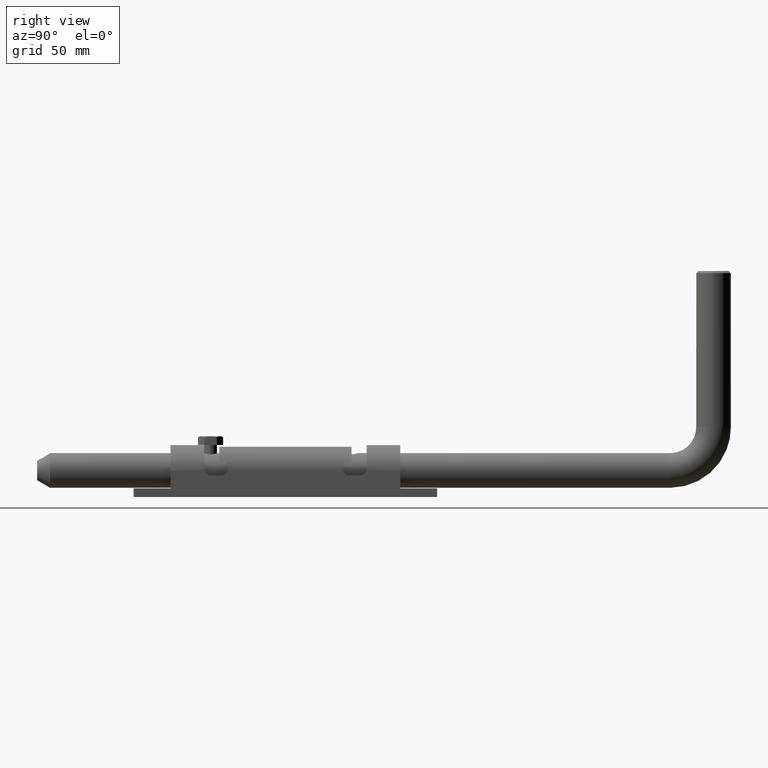
[diagram: clean part render]
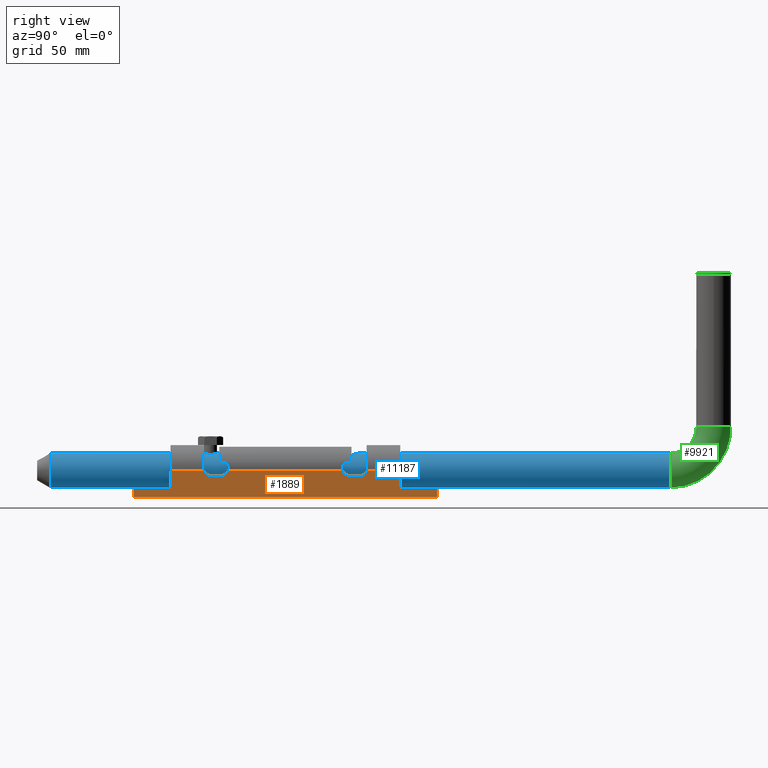
[diagram: same view with three faces highlighted in distinct colors, each labeled with its STEP entity id]
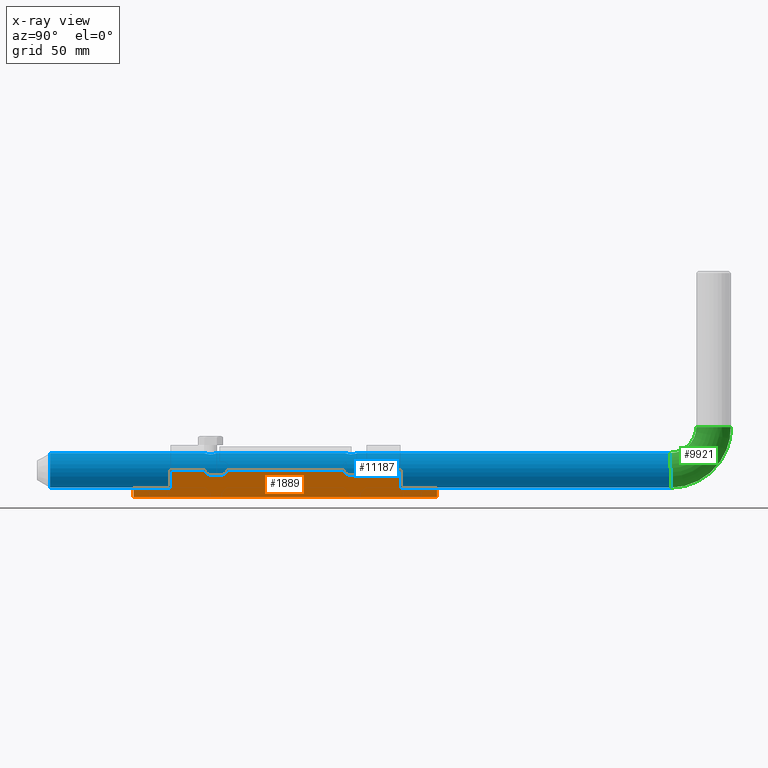
[diagram: x-ray of the same camera — body ghosted, the three highlighted faces saturated]
A machine part, right view with three faces highlighted in distinct colors.
The next image is the same camera in x-ray (body ghosted, the three faces saturated) — at least one of them is partly hidden behind the body in this view.
Their STEP definitions:

[orange] entity #1889 — the highlighted planar face has unit normal (-1, -0, 0).
#284 = VECTOR ( 'NONE', #15888, 1000.000000000000000 ) ;
#290 = EDGE_CURVE ( 'NONE', #322, #16838, #1213, .T. ) ;
#322 = VERTEX_POINT ( 'NONE', #2494 ) ;
#383 = CARTESIAN_POINT ( 'NONE',  ( 11.74999999999998934, -53.00000000000000000, 10.25000000000000888 ) ) ;
#477 = LINE ( 'NONE', #3251, #9412 ) ;
#540 = ORIENTED_EDGE ( 'NONE', *, *, #11032, .F. ) ;
#548 = FACE_OUTER_BOUND ( 'NONE', #8006, .T. ) ;
#795 = CARTESIAN_POINT ( 'NONE',  ( 11.75000000000000888, 37.50000000000000000, 8.000000000000000000 ) ) ;
#858 = ORIENTED_EDGE ( 'NONE', *, *, #13926, .T. ) ;
#983 = VECTOR ( 'NONE', #14760, 1000.000000000000000 ) ;
#990 = CARTESIAN_POINT ( 'NONE',  ( 11.74999999999999112, 70.00000000000000000, 2.000000000000001776 ) ) ;
#1063 = ORIENTED_EDGE ( 'NONE', *, *, #4125, .T. ) ;
#1066 = DIRECTION ( 'NONE',  ( -0.000000000000000000, -0.000000000000000000, -1.000000000000000000 ) ) ;
#1213 = LINE ( 'NONE', #16898, #7965 ) ;
#1458 = CARTESIAN_POINT ( 'NONE',  ( 11.75000000000000888, -37.50000000000000000, 8.000000000000000000 ) ) ;
#1554 = EDGE_CURVE ( 'NONE', #7892, #6774, #9931, .T. ) ;
#1783 = EDGE_CURVE ( 'NONE', #10566, #3492, #10590, .T. ) ;
#1889 = ADVANCED_FACE ( 'NONE', ( #548 ), #15137, .F. ) ;
#1932 = CARTESIAN_POINT ( 'NONE',  ( 11.75000000000000355, -34.49999999999999289, 10.99999999999999645 ) ) ;
#2086 = CARTESIAN_POINT ( 'NONE',  ( 11.74999999999999112, 70.00000000000000000, -2.000000000000001776 ) ) ;
#2197 = CARTESIAN_POINT ( 'NONE',  ( 11.74999999999999112, 70.00000000000000000, 2.000000000000001776 ) ) ;
#2395 = DIRECTION ( 'NONE',  ( -0.000000000000000000, -0.000000000000000000, -1.000000000000000000 ) ) ;
#2444 = CARTESIAN_POINT ( 'NONE',  ( 11.74999999999999112, -53.00000000000000000, 2.000000000000001776 ) ) ;
#2494 = CARTESIAN_POINT ( 'NONE',  ( 11.74999999999998934, 26.59526249034443524, 10.25000000000000888 ) ) ;
#2559 = CARTESIAN_POINT ( 'NONE',  ( 11.74999999999999112, 70.00000000000000000, 2.000000000000001776 ) ) ;
#2614 = DIRECTION ( 'NONE',  ( 0.000000000000000000, -1.000000000000000000, 0.000000000000000000 ) ) ;
#3165 = ORIENTED_EDGE ( 'NONE', *, *, #10746, .T. ) ;
#3248 = VERTEX_POINT ( 'NONE', #2444 ) ;
#3251 = CARTESIAN_POINT ( 'NONE',  ( 11.74999999999998934, 53.00000000000000000, 10.25000000000000888 ) ) ;
#3290 = ORIENTED_EDGE ( 'NONE', *, *, #5492, .T. ) ;
#3291 = EDGE_CURVE ( 'NONE', #5605, #6865, #9895, .T. ) ;
#3305 = VERTEX_POINT ( 'NONE', #9543 ) ;
#3492 = VERTEX_POINT ( 'NONE', #7267 ) ;
#3835 = CARTESIAN_POINT ( 'NONE',  ( 11.74999999999999112, 53.00000000000000000, 2.000000000000001776 ) ) ;
#3844 = DIRECTION ( 'NONE',  ( -1.239088197126290570E-16, 1.000000000000000000, -0.000000000000000000 ) ) ;
#4007 = DIRECTION ( 'NONE',  ( 0.000000000000000000, 1.000000000000000000, 0.000000000000000000 ) ) ;
#4095 = CARTESIAN_POINT ( 'NONE',  ( 11.74999999999998934, 37.40473750965556121, 10.25000000000000888 ) ) ;
#4125 = EDGE_CURVE ( 'NONE', #5605, #7088, #8545, .T. ) ;
#4286 = EDGE_CURVE ( 'NONE', #3492, #15918, #14913, .T. ) ;
#4330 = ORIENTED_EDGE ( 'NONE', *, *, #14730, .T. ) ;
#4450 = DIRECTION ( 'NONE',  ( -0.000000000000000000, -1.000000000000000000, -0.000000000000000000 ) ) ;
#4518 = DIRECTION ( 'NONE',  ( -0.000000000000000000, -1.000000000000000000, -0.000000000000000000 ) ) ;
#4879 = LINE ( 'NONE', #10209, #284 ) ;
#5084 = LINE ( 'NONE', #2559, #5684 ) ;
#5292 = VECTOR ( 'NONE', #4007, 1000.000000000000000 ) ;
#5491 = VECTOR ( 'NONE', #17642, 1000.000000000000000 ) ;
#5492 = EDGE_CURVE ( 'NONE', #12507, #17470, #477, .T. ) ;
#5605 = VERTEX_POINT ( 'NONE', #6599 ) ;
#5655 = CARTESIAN_POINT ( 'NONE',  ( 11.75000000000000888, 29.50000000000000355, 8.000000000000000000 ) ) ;
#5663 = ORIENTED_EDGE ( 'NONE', *, *, #1554, .T. ) ;
#5684 = VECTOR ( 'NONE', #3844, 1000.000000000000000 ) ;
#5691 = AXIS2_PLACEMENT_3D ( 'NONE', #16458, #12320, #2614 ) ;
#5745 = DIRECTION ( 'NONE',  ( -1.000000000000000000, -1.239088197126290817E-16, 0.000000000000000000 ) ) ;
#5999 = CARTESIAN_POINT ( 'NONE',  ( 11.74999999999999289, 29.50000000000000355, 10.99999999999999645 ) ) ;
#6068 = VERTEX_POINT ( 'NONE', #10825 ) ;
#6599 = CARTESIAN_POINT ( 'NONE',  ( 11.75000000000000888, -34.49999999999999289, 8.000000000000000000 ) ) ;
#6774 = VERTEX_POINT ( 'NONE', #5655 ) ;
#6775 = ORIENTED_EDGE ( 'NONE', *, *, #11070, .F. ) ;
#6865 = VERTEX_POINT ( 'NONE', #11788 ) ;
#6978 = DIRECTION ( 'NONE',  ( 0.000000000000000000, -1.000000000000000000, 0.000000000000000000 ) ) ;
#7088 = VERTEX_POINT ( 'NONE', #14358 ) ;
#7257 = CARTESIAN_POINT ( 'NONE',  ( 11.74999999999998934, 53.00000000000000000, 10.25000000000000888 ) ) ;
#7267 = CARTESIAN_POINT ( 'NONE',  ( 11.75000000000000888, -70.00000000000000000, -2.000000000000001776 ) ) ;
#7414 = DIRECTION ( 'NONE',  ( 1.416100796715759877E-16, 0.000000000000000000, -1.000000000000000000 ) ) ;
#7631 = AXIS2_PLACEMENT_3D ( 'NONE', #5999, #8888, #8759 ) ;
#7739 = VERTEX_POINT ( 'NONE', #3835 ) ;
#7892 = VERTEX_POINT ( 'NONE', #15623 ) ;
#7965 = VECTOR ( 'NONE', #4450, 1000.000000000000000 ) ;
#8006 = EDGE_LOOP ( 'NONE', ( #3290, #4330, #5663, #858, #9965, #10235, #14186, #1063, #17849, #3165, #6775, #16463, #15106, #540, #8702, #10273 ) ) ;
#8107 = EDGE_CURVE ( 'NONE', #7739, #6068, #13829, .T. ) ;
#8283 = VECTOR ( 'NONE', #2395, 1000.000000000000000 ) ;
#8545 = CIRCLE ( 'NONE', #17211, 3.000000000000002665 ) ;
#8702 = ORIENTED_EDGE ( 'NONE', *, *, #8107, .F. ) ;
#8759 = DIRECTION ( 'NONE',  ( 0.000000000000000000, -1.000000000000000000, 0.000000000000000000 ) ) ;
#8768 = EDGE_CURVE ( 'NONE', #12507, #7739, #8980, .T. ) ;
#8845 = CIRCLE ( 'NONE', #7631, 2.999999999999999112 ) ;
#8888 = DIRECTION ( 'NONE',  ( -1.000000000000000000, -1.239088197126290817E-16, 0.000000000000000000 ) ) ;
#8980 = LINE ( 'NONE', #14216, #17890 ) ;
#9200 = VECTOR ( 'NONE', #10145, 1000.000000000000000 ) ;
#9336 = CARTESIAN_POINT ( 'NONE',  ( 11.74999999999999112, 70.00000000000000000, -2.000000000000001776 ) ) ;
#9412 = VECTOR ( 'NONE', #4518, 1000.000000000000000 ) ;
#9543 = CARTESIAN_POINT ( 'NONE',  ( 11.74999999999998934, -53.00000000000000000, 10.25000000000000888 ) ) ;
#9835 = DIRECTION ( 'NONE',  ( 1.239088197126290817E-16, -1.000000000000000000, 0.000000000000000000 ) ) ;
#9895 = LINE ( 'NONE', #1458, #5292 ) ;
#9931 = LINE ( 'NONE', #795, #13228 ) ;
#9965 = ORIENTED_EDGE ( 'NONE', *, *, #290, .T. ) ;
#10145 = DIRECTION ( 'NONE',  ( 1.416100796715759877E-16, 0.000000000000000000, -1.000000000000000000 ) ) ;
#10209 = CARTESIAN_POINT ( 'NONE',  ( 11.74999999999998934, 53.00000000000000000, 10.25000000000000888 ) ) ;
#10235 = ORIENTED_EDGE ( 'NONE', *, *, #17961, .T. ) ;
#10273 = ORIENTED_EDGE ( 'NONE', *, *, #8768, .F. ) ;
#10286 = LINE ( 'NONE', #990, #8283 ) ;
#10332 = DIRECTION ( 'NONE',  ( -1.000000000000000000, -1.239088197126290817E-16, 0.000000000000000000 ) ) ;
#10566 = VERTEX_POINT ( 'NONE', #12230 ) ;
#10590 = LINE ( 'NONE', #16584, #12989 ) ;
#10594 = CIRCLE ( 'NONE', #10921, 3.000000000000002665 ) ;
#10746 = EDGE_CURVE ( 'NONE', #3305, #3248, #13761, .T. ) ;
#10825 = CARTESIAN_POINT ( 'NONE',  ( 11.74999999999999112, 70.00000000000000000, 2.000000000000001776 ) ) ;
#10921 = AXIS2_PLACEMENT_3D ( 'NONE', #15371, #14019, #6978 ) ;
#11032 = EDGE_CURVE ( 'NONE', #6068, #15918, #10286, .T. ) ;
#11070 = EDGE_CURVE ( 'NONE', #10566, #3248, #5084, .T. ) ;
#11788 = CARTESIAN_POINT ( 'NONE',  ( 11.75000000000000888, -29.50000000000000355, 8.000000000000000000 ) ) ;
#11816 = DIRECTION ( 'NONE',  ( 0.000000000000000000, -1.000000000000000000, 0.000000000000000000 ) ) ;
#12230 = CARTESIAN_POINT ( 'NONE',  ( 11.75000000000000888, -70.00000000000000000, 2.000000000000001776 ) ) ;
#12320 = DIRECTION ( 'NONE',  ( -1.000000000000000000, -1.239088197126290817E-16, 0.000000000000000000 ) ) ;
#12507 = VERTEX_POINT ( 'NONE', #7257 ) ;
#12989 = VECTOR ( 'NONE', #1066, 1000.000000000000000 ) ;
#13228 = VECTOR ( 'NONE', #16159, 1000.000000000000000 ) ;
#13761 = LINE ( 'NONE', #383, #9200 ) ;
#13829 = LINE ( 'NONE', #2197, #983 ) ;
#13926 = EDGE_CURVE ( 'NONE', #6774, #322, #8845, .T. ) ;
#14019 = DIRECTION ( 'NONE',  ( -1.000000000000000000, -1.239088197126290817E-16, 0.000000000000000000 ) ) ;
#14186 = ORIENTED_EDGE ( 'NONE', *, *, #3291, .F. ) ;
#14201 = CARTESIAN_POINT ( 'NONE',  ( 11.74999999999998934, -26.59526249034443168, 10.25000000000000888 ) ) ;
#14216 = CARTESIAN_POINT ( 'NONE',  ( 11.74999999999998934, 53.00000000000000000, 10.25000000000000888 ) ) ;
#14358 = CARTESIAN_POINT ( 'NONE',  ( 11.74999999999998934, -37.40473750965555411, 10.25000000000000888 ) ) ;
#14377 = CARTESIAN_POINT ( 'NONE',  ( 11.74999999999999112, 70.00000000000000000, 2.000000000000001776 ) ) ;
#14730 = EDGE_CURVE ( 'NONE', #17470, #7892, #10594, .T. ) ;
#14760 = DIRECTION ( 'NONE',  ( -1.239088197126290570E-16, 1.000000000000000000, -0.000000000000000000 ) ) ;
#14913 = LINE ( 'NONE', #9336, #5491 ) ;
#15106 = ORIENTED_EDGE ( 'NONE', *, *, #4286, .T. ) ;
#15137 = PLANE ( 'NONE',  #17559 ) ;
#15371 = CARTESIAN_POINT ( 'NONE',  ( 11.74999999999999645, 34.49999999999999289, 10.99999999999999645 ) ) ;
#15569 = CIRCLE ( 'NONE', #5691, 2.999999999999999112 ) ;
#15623 = CARTESIAN_POINT ( 'NONE',  ( 11.75000000000000888, 34.49999999999999289, 8.000000000000000000 ) ) ;
#15888 = DIRECTION ( 'NONE',  ( -0.000000000000000000, -1.000000000000000000, -0.000000000000000000 ) ) ;
#15918 = VERTEX_POINT ( 'NONE', #2086 ) ;
#16159 = DIRECTION ( 'NONE',  ( 0.000000000000000000, -1.000000000000000000, 0.000000000000000000 ) ) ;
#16458 = CARTESIAN_POINT ( 'NONE',  ( 11.75000000000000355, -29.50000000000000355, 10.99999999999999645 ) ) ;
#16463 = ORIENTED_EDGE ( 'NONE', *, *, #1783, .T. ) ;
#16584 = CARTESIAN_POINT ( 'NONE',  ( 11.75000000000000888, -70.00000000000000000, 2.000000000000001776 ) ) ;
#16838 = VERTEX_POINT ( 'NONE', #14201 ) ;
#16898 = CARTESIAN_POINT ( 'NONE',  ( 11.74999999999998934, 53.00000000000000000, 10.25000000000000888 ) ) ;
#17211 = AXIS2_PLACEMENT_3D ( 'NONE', #1932, #10332, #11816 ) ;
#17470 = VERTEX_POINT ( 'NONE', #4095 ) ;
#17559 = AXIS2_PLACEMENT_3D ( 'NONE', #14377, #5745, #9835 ) ;
#17637 = EDGE_CURVE ( 'NONE', #7088, #3305, #4879, .T. ) ;
#17642 = DIRECTION ( 'NONE',  ( -1.239088197126290570E-16, 1.000000000000000000, -0.000000000000000000 ) ) ;
#17849 = ORIENTED_EDGE ( 'NONE', *, *, #17637, .T. ) ;
#17890 = VECTOR ( 'NONE', #7414, 1000.000000000000000 ) ;
#17961 = EDGE_CURVE ( 'NONE', #16838, #6865, #15569, .T. ) ;

[blue] entity #11187 — the highlighted cylindrical surface (bore or boss wall) has radius 8 mm, axis along (0, 1, 0).
#23 = CARTESIAN_POINT ( 'NONE',  ( -1.820725851765485404, 77.71270605774427054, 7.795104764784767326 ) ) ;
#28 = CARTESIAN_POINT ( 'NONE',  ( 1.954411451380856812, 147.1574661179060968, 7.758871341684750789 ) ) ;
#84 = CARTESIAN_POINT ( 'NONE',  ( -2.728697388001142254, 78.89759823449482212, 7.520253357747712641 ) ) ;
#89 = CARTESIAN_POINT ( 'NONE',  ( 1.805837521668643086, 142.7241409154779603, 7.795239744016940975 ) ) ;
#163 = CARTESIAN_POINT ( 'NONE',  ( 2.091119801621545538, 142.9749717772170925, 7.721866223605940327 ) ) ;
#222 = CARTESIAN_POINT ( 'NONE',  ( 2.798752863659808021, 144.0722404399390939, 7.494526035374088124 ) ) ;
#286 = CARTESIAN_POINT ( 'NONE',  ( 2.827404402635061320, 144.1631391955804418, 7.483701246305859200 ) ) ;
#342 = CARTESIAN_POINT ( 'NONE',  ( -2.728896607379085903, 81.10193863430457384, 7.520181068713366557 ) ) ;
#406 = CARTESIAN_POINT ( 'NONE',  ( 0.3874701290493794970, 82.84158122186734374, 7.991200090863036287 ) ) ;
#470 = CARTESIAN_POINT ( 'NONE',  ( 0.5813416010304349735, 82.80879013416610235, 7.978849662884455185 ) ) ;
#529 = CARTESIAN_POINT ( 'NONE',  ( 1.486201554750366860, 82.48347533190236902, 7.862446783781999571 ) ) ;
#592 = CARTESIAN_POINT ( 'NONE',  ( 2.932450101916341367, 79.62428636703674556, 7.443174237899068402 ) ) ;
#658 = CARTESIAN_POINT ( 'NONE',  ( 0.7697580693894752191, 77.23247024639593405, 7.963434342698652912 ) ) ;
#717 = CARTESIAN_POINT ( 'NONE',  ( 0.1960556860355595621, 77.13527680465693948, 8.000000000000000000 ) ) ;
#776 = CARTESIAN_POINT ( 'NONE',  ( 0.8630930836915583493, 77.26007854859328461, 7.953305622751070558 ) ) ;
#838 = CARTESIAN_POINT ( 'NONE',  ( 0.5810474846539488425, 77.19115270818731744, 7.978871086850402250 ) ) ;
#1039 = CARTESIAN_POINT ( 'NONE',  ( -1.959434878635765131E-15, 142.1352778058897286, 8.000000000000000000 ) ) ;
#1148 = CARTESIAN_POINT ( 'NONE',  ( -2.349042890495302682, 146.7493075341488407, 7.648177558948791699 ) ) ;
#1205 = CARTESIAN_POINT ( 'NONE',  ( -2.879684493364370823, 144.3449880144374049, 7.463768271077476868 ) ) ;
#1261 = CARTESIAN_POINT ( 'NONE',  ( -0.1223748730952941566, 147.8623648255052387, 7.999100708924116176 ) ) ;
#1272 = CARTESIAN_POINT ( 'NONE',  ( 0.000000000000000000, 0.000000000000000000, 0.000000000000000000 ) ) ;
#1319 = CARTESIAN_POINT ( 'NONE',  ( -0.1950940106271666641, 147.8588663682631363, 7.997767774280446496 ) ) ;
#1383 = CARTESIAN_POINT ( 'NONE',  ( 0.1449178330926555458, 147.8612794986409540, 7.998687318657464296 ) ) ;
#1454 = CARTESIAN_POINT ( 'NONE',  ( 2.918166432513877862, 144.5313814548785274, 7.448806939290142815 ) ) ;
#1508 = CARTESIAN_POINT ( 'NONE',  ( -2.091505685154230409, 77.97534599812475165, 7.721761714075846328 ) ) ;
#1515 = CARTESIAN_POINT ( 'NONE',  ( 2.898228840900992864, 145.5653064623030559, 7.456558830034782481 ) ) ;
#1580 = CARTESIAN_POINT ( 'NONE',  ( 1.806990639269438148, 147.2750263163745217, 7.794975902383402655 ) ) ;
#1635 = CARTESIAN_POINT ( 'NONE',  ( -0.5807929428111853198, 77.19110327683273454, 7.978889619338064954 ) ) ;
#1640 = CARTESIAN_POINT ( 'NONE',  ( 2.956361528058335963, 145.0005842737114961, 7.433702073355951789 ) ) ;
#1701 = CARTESIAN_POINT ( 'NONE',  ( -0.1950940110559589991, 82.85886636825270557, 7.997767774269986418 ) ) ;
#1707 = CARTESIAN_POINT ( 'NONE',  ( 0.8630930836916925752, 142.2600785485933557, 7.953305622751056347 ) ) ;
#1761 = CARTESIAN_POINT ( 'NONE',  ( -0.1223748735241579760, 82.86236482549482218, 7.999100708917551650 ) ) ;
#1820 = CARTESIAN_POINT ( 'NONE',  ( 0.1206234014969182339, 82.86243495075370902, 7.999127477928632324 ) ) ;
#1880 = CARTESIAN_POINT ( 'NONE',  ( 1.135981699070881756, 82.64479493862805271, 7.918935886808028179 ) ) ;
#1941 = CARTESIAN_POINT ( 'NONE',  ( 1.806990639272411325, 82.27502631637220532, 7.794975902382778266 ) ) ;
#2002 = CARTESIAN_POINT ( 'NONE',  ( 1.955601196517906537, 77.84356764798356210, 7.758565336283383296 ) ) ;
#2181 = CARTESIAN_POINT ( 'NONE',  ( 2.956399506794769039, 79.90529108742563835, 7.433686969323779259 ) ) ;
#2237 = CARTESIAN_POINT ( 'NONE',  ( 2.956361528058335963, 80.00058427371143921, 7.433702073355951789 ) ) ;
#2437 = CARTESIAN_POINT ( 'NONE',  ( -0.5807929428111853198, 142.1911032768327630, 7.978889619338064954 ) ) ;
#2549 = CARTESIAN_POINT ( 'NONE',  ( -2.654055551752579234, 143.7241258174699681, 7.547336884580918337 ) ) ;
#2601 = CARTESIAN_POINT ( 'NONE',  ( -0.5820103971711938495, 147.8086600977558760, 7.978800905999889004 ) ) ;
#2661 = CARTESIAN_POINT ( 'NONE',  ( -1.137050861506849975, 147.6443635203802387, 7.918782440397420963 ) ) ;
#2719 = B_SPLINE_CURVE_WITH_KNOTS ( 'NONE', 3,
 ( #7191, #16747, #7005, #1635, #5803, #4237, #11125, #8361, #23, #1508, #9788, #13991, #5617, #15406, #16811, #84, #11253, #15474, #14365, #4544, #6100, #8803, #4729, #11647, #4667, #13035, #14244, #11448, #3096, #17302, #342, #11575, #7255, #5919, #3275, #12910, #14431, #14305, #10104, #15847, #11516, #4603, #12849, #5979, #10041, #15725, #3217, #4487, #5860, #8933, #1701, #12971, #1761, #15665, #10166, #17054, #8677, #6040, #7319, #15786, #7383, #3154, #1820, #17177, #17113, #8735, #7441, #406, #11705, #470, #10228, #17240, #1880, #8867, #529, #10282, #1941, #3336, #13094, #14493, #7504, #15905, #7690, #4857, #6400, #10404, #7814, #2237, #2181, #17597, #9051, #592, #4914, #14617, #10523, #3519, #6223, #8991, #10343, #13159, #16028, #16090, #7630, #2002, #10583, #11825, #17482, #14802, #4795, #17420, #9116, #776, #658, #6282, #838, #12004, #717, #14557 ),
 .UNSPECIFIED., .T., .F.,
 ( 4, 3, 3, 3, 3, 3, 3, 3, 3, 3, 3, 3, 3, 3, 3, 3, 3, 3, 3, 3, 3, 3, 3, 3, 3, 3, 3, 3, 3, 3, 3, 3, 3, 3, 3, 3, 3, 3, 3, 4 ),
 ( 0.000000000000000000, 0.02564102564102564014, 0.05128205128205128027, 0.07692307692307692735, 0.1025641025641025605, 0.1282051282051281937, 0.1538461538461538547, 0.1794871794871794879, 0.2051282051282051211, 0.2307692307692307820, 0.2564102564102563875, 0.2820512820512820484, 0.3076923076923077094, 0.3333333333333333148, 0.3589743589743589758, 0.3846153846153846367, 0.4102564102564102422, 0.4358974358974359031, 0.4615384615384615641, 0.4871794871794871695, 0.5128205128205127750, 0.5384615384615384359, 0.5641025641025640969, 0.5897435897435897578, 0.6153846153846154188, 0.6410256410256410797, 0.6666666666666666297, 0.6923076923076922906, 0.7179487179487179516, 0.7435897435897436125, 0.7692307692307692735, 0.7948717948717948234, 0.8205128205128204844, 0.8461538461538461453, 0.8717948717948718063, 0.8974358974358974672, 0.9230769230769231282, 0.9487179487179486781, 0.9743589743589743390, 1.000000000000000000 ),
 .UNSPECIFIED. ) ;
#2722 = CARTESIAN_POINT ( 'NONE',  ( -0.02412201206255002936, 147.8647141316614579, 7.999997055846485239 ) ) ;
#2787 = CARTESIAN_POINT ( 'NONE',  ( -2.349195199606823437, 143.2508027589703943, 7.648137152918414117 ) ) ;
#2844 = CARTESIAN_POINT ( 'NONE',  ( 0.6762152901099813818, 142.2096395670006643, 7.971940656044045781 ) ) ;
#2910 = CARTESIAN_POINT ( 'NONE',  ( 2.579843431320280711, 143.5512575138595821, 7.574274035297327679 ) ) ;
#2978 = CARTESIAN_POINT ( 'NONE',  ( 2.936346539828233571, 145.3818244516599236, 7.441743173523803101 ) ) ;
#3039 = CARTESIAN_POINT ( 'NONE',  ( 0.3907118737419050802, 142.1541789905606379, 7.992731948463116964 ) ) ;
#3096 = CARTESIAN_POINT ( 'NONE',  ( -2.860663060754486953, 80.74691612150964204, 7.471162677825833320 ) ) ;
#3154 = CARTESIAN_POINT ( 'NONE',  ( 0.09631582559184025116, 82.86329955445062012, 7.999457153967226120 ) ) ;
#3217 = CARTESIAN_POINT ( 'NONE',  ( -0.4860229622130083915, 82.82733887915166804, 7.985802670525863789 ) ) ;
#3275 = CARTESIAN_POINT ( 'NONE',  ( -2.349042890283638219, 81.74930753442748710, 7.648177559017068639 ) ) ;
#3336 = CARTESIAN_POINT ( 'NONE',  ( 1.954411451703687019, 82.15746611767497143, 7.758871341597387783 ) ) ;
#3409 = CIRCLE ( 'NONE', #7160, 8.000000000000000000 ) ;
#3519 = CARTESIAN_POINT ( 'NONE',  ( 2.856055941610647686, 79.25403795121155781, 7.472876457237505043 ) ) ;
#3948 = CARTESIAN_POINT ( 'NONE',  ( -2.654604071014806443, 146.2746963338947808, 7.547140080549069374 ) ) ;
#4002 = CARTESIAN_POINT ( 'NONE',  ( 0.5813416010277419055, 147.8087901341662871, 7.978849662884651472 ) ) ;
#4064 = CARTESIAN_POINT ( 'NONE',  ( -2.956204773416559739, 144.8090879435114289, 7.433764414207584714 ) ) ;
#4075 = DIRECTION ( 'NONE',  ( 0.000000000000000000, 1.000000000000000000, 0.000000000000000000 ) ) ;
#4122 = CARTESIAN_POINT ( 'NONE',  ( 0.02212796134543389137, 147.8647299307375818, 8.000002819896065986 ) ) ;
#4183 = CARTESIAN_POINT ( 'NONE',  ( -0.0009970253585580679100, 147.8647220311995056, 7.999999937871276501 ) ) ;
#4237 = CARTESIAN_POINT ( 'NONE',  ( -0.9606626918499212575, 77.28431504800593643, 7.944143457892193894 ) ) ;
#4241 = CARTESIAN_POINT ( 'NONE',  ( 1.314577625242254966, 147.5727733045734169, 7.893316067862799379 ) ) ;
#4304 = CARTESIAN_POINT ( 'NONE',  ( 1.955601195964482342, 142.8435676473916089, 7.758565336433265180 ) ) ;
#4316 = CARTESIAN_POINT ( 'NONE',  ( 0.000000000000000000, 292.0000000000000000, 8.000000000000000000 ) ) ;
#4358 = B_SPLINE_CURVE_WITH_KNOTS ( 'NONE', 3,
 ( #1039, #10838, #10781, #2437, #12197, #16396, #8011, #17780, #13640, #8179, #10890, #2787, #13936, #15108, #2549, #5444, #17881, #9598, #9728, #9482, #1205, #6821, #16507, #4064, #16683, #18061, #6761, #12308, #9539, #15221, #11068, #3948, #11129, #13750, #1148, #13694, #9660, #17937, #12429, #13810, #5501, #16621, #2661, #12489, #8117, #2601, #10948, #12550, #16561, #8235, #1319, #5327, #1261, #6888, #15341, #18003, #2722, #4183, #4122, #13877, #15283, #11007, #5388, #1383, #12369, #8302, #5560, #16448, #6703, #4002, #8064, #17832, #15161, #4241, #12797, #8364, #1580, #28, #11327, #6948, #12673, #8492, #4425, #16940, #1515, #2978, #14184, #1640, #5866, #5810, #16752, #9794, #1454, #17003, #16876, #4490, #286, #222, #16815, #15607, #2910, #9986, #163, #4304, #89, #9920, #4366, #9859, #5742, #11392, #11186, #1707, #14053, #2844, #12613, #3039, #12737, #14121 ),
 .UNSPECIFIED., .T., .F.,
 ( 4, 3, 3, 3, 3, 3, 3, 3, 3, 3, 3, 3, 3, 3, 3, 3, 3, 3, 3, 3, 3, 3, 3, 3, 3, 3, 3, 3, 3, 3, 3, 3, 3, 3, 3, 3, 3, 3, 3, 4 ),
 ( 0.000000000000000000, 0.02564102564102564014, 0.05128205128205128027, 0.07692307692307692735, 0.1025641025641025605, 0.1282051282051281937, 0.1538461538461538547, 0.1794871794871794879, 0.2051282051282051211, 0.2307692307692307820, 0.2564102564102563875, 0.2820512820512820484, 0.3076923076923077094, 0.3333333333333333148, 0.3589743589743589758, 0.3846153846153846367, 0.4102564102564102422, 0.4358974358974359031, 0.4615384615384615641, 0.4871794871794871695, 0.5128205128205127750, 0.5384615384615384359, 0.5641025641025640969, 0.5897435897435897578, 0.6153846153846154188, 0.6410256410256410797, 0.6666666666666666297, 0.6923076923076922906, 0.7179487179487179516, 0.7435897435897436125, 0.7692307692307692735, 0.7948717948717948234, 0.8205128205128204844, 0.8461538461538461453, 0.8717948717948718063, 0.8974358974358974672, 0.9230769230769231282, 0.9487179487179486781, 0.9743589743589743390, 1.000000000000000000 ),
 .UNSPECIFIED. ) ;
#4366 = CARTESIAN_POINT ( 'NONE',  ( 1.485354436384893395, 142.5160581812234852, 7.862603514083573941 ) ) ;
#4425 = CARTESIAN_POINT ( 'NONE',  ( 2.803422463428156597, 145.9286577835742094, 7.493137813006541137 ) ) ;
#4442 = CARTESIAN_POINT ( 'NONE',  ( -1.959434878635765131E-15, 142.1352778058897286, 8.000000000000000000 ) ) ;
#4487 = CARTESIAN_POINT ( 'NONE',  ( -0.3885509638149525213, 82.84143218408770792, 7.991144486534918379 ) ) ;
#4490 = CARTESIAN_POINT ( 'NONE',  ( 2.856055941610315063, 144.2540379512217612, 7.472876457237630277 ) ) ;
#4544 = CARTESIAN_POINT ( 'NONE',  ( -2.855707877878079337, 79.25279245668973260, 7.473009400537756974 ) ) ;
#4551 = ORIENTED_EDGE ( 'NONE', *, *, #14424, .F. ) ;
#4603 = CARTESIAN_POINT ( 'NONE',  ( -1.315169873409030465, 82.57244529255811472, 7.893206491385244661 ) ) ;
#4667 = CARTESIAN_POINT ( 'NONE',  ( -2.956361118489503337, 79.99823154516934665, 7.433702236240264050 ) ) ;
#4729 = CARTESIAN_POINT ( 'NONE',  ( -2.936959829096394969, 79.62202957715352625, 7.441501549078414435 ) ) ;
#4795 = CARTESIAN_POINT ( 'NONE',  ( 1.138233626674162391, 77.35611431041317587, 7.918612518055683225 ) ) ;
#4857 = CARTESIAN_POINT ( 'NONE',  ( 2.860111141973646021, 80.74878847297398465, 7.471374486545803606 ) ) ;
#4914 = CARTESIAN_POINT ( 'NONE',  ( 2.918166432527402598, 79.53138145495572076, 7.448806939284883022 ) ) ;
#5199 = ORIENTED_EDGE ( 'NONE', *, *, #10129, .T. ) ;
#5327 = CARTESIAN_POINT ( 'NONE',  ( -0.1466145856059183072, 147.8611986730912236, 7.998656397376225691 ) ) ;
#5388 = CARTESIAN_POINT ( 'NONE',  ( 0.1206234016029045925, 147.8624349507537659, 7.999127477927036267 ) ) ;
#5444 = CARTESIAN_POINT ( 'NONE',  ( -2.728697388001134705, 143.8975982344948363, 7.520253357747715306 ) ) ;
#5462 = VERTEX_POINT ( 'NONE', #4442 ) ;
#5501 = CARTESIAN_POINT ( 'NONE',  ( -1.485969993065701544, 147.4836690708601452, 7.862503817100897407 ) ) ;
#5560 = CARTESIAN_POINT ( 'NONE',  ( 0.2905186933440223607, 147.8508566049731030, 7.994723190256038947 ) ) ;
#5617 = CARTESIAN_POINT ( 'NONE',  ( -2.456529406351871447, 78.40613424170400947, 7.613505321186065267 ) ) ;
#5742 = CARTESIAN_POINT ( 'NONE',  ( 1.138233626674492793, 142.3561143104133464, 7.918612518055637040 ) ) ;
#5803 = CARTESIAN_POINT ( 'NONE',  ( -0.7715961668360556969, 77.22814466093610974, 7.965000823870749258 ) ) ;
#5810 = CARTESIAN_POINT ( 'NONE',  ( 2.951628703255995578, 144.8124288133525965, 7.435589709906597733 ) ) ;
#5860 = CARTESIAN_POINT ( 'NONE',  ( -0.2918576563064751439, 82.85072820223112444, 7.994674421666918995 ) ) ;
#5866 = CARTESIAN_POINT ( 'NONE',  ( 2.956399506794773480, 144.9052910874159465, 7.433686969323777483 ) ) ;
#5919 = CARTESIAN_POINT ( 'NONE',  ( -2.455967399233760950, 81.59467877881375841, 7.613686632236774443 ) ) ;
#5979 = CARTESIAN_POINT ( 'NONE',  ( -0.9589318496046692619, 82.71628174820236268, 7.944358389409597265 ) ) ;
#6040 = CARTESIAN_POINT ( 'NONE',  ( -0.0009970253585651733374, 82.86472203119951985, 7.999999937871276501 ) ) ;
#6100 = CARTESIAN_POINT ( 'NONE',  ( -2.879684493375626708, 79.34498801451917416, 7.463768271073100813 ) ) ;
#6223 = CARTESIAN_POINT ( 'NONE',  ( 2.827404402635061320, 79.16313919558034229, 7.483701246305859200 ) ) ;
#6282 = CARTESIAN_POINT ( 'NONE',  ( 0.6762152901110611847, 77.20963956701461939, 7.971940656043965845 ) ) ;
#6400 = CARTESIAN_POINT ( 'NONE',  ( 2.898228840900992864, 80.56530646230309856, 7.456558830034782481 ) ) ;
#6703 = CARTESIAN_POINT ( 'NONE',  ( 0.4850676968542561585, 147.8274984450717113, 7.985864211090735409 ) ) ;
#6761 = CARTESIAN_POINT ( 'NONE',  ( -2.936724187512441464, 145.3792127854516139, 7.441593643311853690 ) ) ;
#6821 = CARTESIAN_POINT ( 'NONE',  ( -2.898776271949209615, 144.4373352020639629, 7.456346030408208314 ) ) ;
#6888 = CARTESIAN_POINT ( 'NONE',  ( -0.09811955398190264077, 147.8632415148879602, 7.999435082097784644 ) ) ;
#6948 = CARTESIAN_POINT ( 'NONE',  ( 2.361973409658608691, 146.7626365913268671, 7.648549933450646598 ) ) ;
#6961 = DIRECTION ( 'NONE',  ( 0.000000000000000000, 0.000000000000000000, 1.000000000000000000 ) ) ;
#7005 = CARTESIAN_POINT ( 'NONE',  ( -0.3899897187863150538, 77.15406189272935933, 7.992778414805379761 ) ) ;
#7154 = CARTESIAN_POINT ( 'NONE',  ( -1.959434878635765131E-15, 77.13527780588971439, 8.000000000000000000 ) ) ;
#7160 = AXIS2_PLACEMENT_3D ( 'NONE', #7498, #7438, #13031 ) ;
#7191 = CARTESIAN_POINT ( 'NONE',  ( -1.959434878635765131E-15, 77.13527780588971439, 8.000000000000000000 ) ) ;
#7255 = CARTESIAN_POINT ( 'NONE',  ( -2.562891908183883682, 81.44005002320002973, 7.579195705456481136 ) ) ;
#7262 = CIRCLE ( 'NONE', #17980, 8.000000000000000000 ) ;
#7319 = CARTESIAN_POINT ( 'NONE',  ( 0.02212795384633986506, 82.86472993073823545, 8.000002819895133399 ) ) ;
#7383 = CARTESIAN_POINT ( 'NONE',  ( 0.07199611114440551685, 82.86387330973163046, 7.999676028438908126 ) ) ;
#7438 = DIRECTION ( 'NONE',  ( 0.000000000000000000, 1.000000000000000000, 0.000000000000000000 ) ) ;
#7441 = CARTESIAN_POINT ( 'NONE',  ( 0.2905186933426235352, 82.85085660497310300, 7.994723190256088685 ) ) ;
#7498 = CARTESIAN_POINT ( 'NONE',  ( 0.000000000000000000, 292.0000000000000000, 0.000000000000000000 ) ) ;
#7504 = CARTESIAN_POINT ( 'NONE',  ( 2.579731946253576158, 81.44876288812953646, 7.574308566349085226 ) ) ;
#7622 = ORIENTED_EDGE ( 'NONE', *, *, #9156, .T. ) ;
#7630 = CARTESIAN_POINT ( 'NONE',  ( 2.091119801620839436, 77.97497177721628248, 7.721866223606132174 ) ) ;
#7690 = CARTESIAN_POINT ( 'NONE',  ( 2.803422463638137963, 80.92865778311094971, 7.493137812930354080 ) ) ;
#7814 = CARTESIAN_POINT ( 'NONE',  ( 2.956285570585469813, 80.19117064628305513, 7.433732281420296850 ) ) ;
#8011 = CARTESIAN_POINT ( 'NONE',  ( -1.138522567735153368, 142.3562311270665646, 7.918570979839591573 ) ) ;
#8064 = CARTESIAN_POINT ( 'NONE',  ( 0.7738894093747132885, 147.7713735123554670, 7.964820566472482710 ) ) ;
#8117 = CARTESIAN_POINT ( 'NONE',  ( -0.7739852679291691073, 147.7713025348004408, 7.964797376886545877 ) ) ;
#8179 = CARTESIAN_POINT ( 'NONE',  ( -2.091505685154237071, 142.9753459981247659, 7.721761714075844552 ) ) ;
#8235 = CARTESIAN_POINT ( 'NONE',  ( -0.2435110022664901397, 147.8553762113097889, 7.996439389243350071 ) ) ;
#8302 = CARTESIAN_POINT ( 'NONE',  ( 0.2420429755609598554, 147.8554942965259897, 7.996484739950019183 ) ) ;
#8361 = CARTESIAN_POINT ( 'NONE',  ( -1.494242319505595828, 77.50006328518773557, 7.867426023734393148 ) ) ;
#8364 = CARTESIAN_POINT ( 'NONE',  ( 1.646596097011409965, 147.3792508241373298, 7.828711343082384033 ) ) ;
#8492 = CARTESIAN_POINT ( 'NONE',  ( 2.728858957843951938, 146.1020261514490244, 7.520194730736354138 ) ) ;
#8677 = CARTESIAN_POINT ( 'NONE',  ( -0.02412200456347021044, 82.86471413166080424, 7.999997055847418714 ) ) ;
#8735 = CARTESIAN_POINT ( 'NONE',  ( 0.2420429754892455543, 82.85549429652597553, 7.996484739952614440 ) ) ;
#8803 = CARTESIAN_POINT ( 'NONE',  ( -2.898776271949216277, 79.43733520206396292, 7.456346030408205650 ) ) ;
#8867 = CARTESIAN_POINT ( 'NONE',  ( 1.314577624735504324, 82.57277330475109522, 7.893316067935442604 ) ) ;
#8904 = EDGE_LOOP ( 'NONE', ( #7622 ) ) ;
#8933 = CARTESIAN_POINT ( 'NONE',  ( -0.2435110025522363997, 82.85537621130281138, 7.996439389232917527 ) ) ;
#8991 = CARTESIAN_POINT ( 'NONE',  ( 2.798752863659475398, 79.07224043994912677, 7.494526035374213357 ) ) ;
#9051 = CARTESIAN_POINT ( 'NONE',  ( 2.942039402586162034, 79.71835759022218326, 7.439381973902835732 ) ) ;
#9116 = CARTESIAN_POINT ( 'NONE',  ( 0.9564280979936414795, 77.28768685079062095, 7.943176902803488204 ) ) ;
#9154 = CYLINDRICAL_SURFACE ( 'NONE', #17570, 8.000000000000000000 ) ;
#9156 = EDGE_CURVE ( 'NONE', #5462, #5462, #4358, .T. ) ;
#9482 = CARTESIAN_POINT ( 'NONE',  ( -2.855707877894741120, 144.2527924567425544, 7.473009400531463342 ) ) ;
#9489 = FACE_BOUND ( 'NONE', #8904, .T. ) ;
#9539 = CARTESIAN_POINT ( 'NONE',  ( -2.860663060787908663, 145.7469161213207371, 7.471162677812840158 ) ) ;
#9598 = CARTESIAN_POINT ( 'NONE',  ( -2.798437522263217847, 144.0713827649901475, 7.494643715233633152 ) ) ;
#9660 = CARTESIAN_POINT ( 'NONE',  ( -2.089916647959450202, 147.0261941483637997, 7.722191943003096526 ) ) ;
#9728 = CARTESIAN_POINT ( 'NONE',  ( -2.827072700078979484, 144.1620876108663651, 7.483826557882547803 ) ) ;
#9788 = CARTESIAN_POINT ( 'NONE',  ( -2.226895601848602801, 78.10666596831498509, 7.685090188721384941 ) ) ;
#9794 = CARTESIAN_POINT ( 'NONE',  ( 2.932450101916328489, 144.6242863670912868, 7.443174237899074619 ) ) ;
#9859 = CARTESIAN_POINT ( 'NONE',  ( 1.316320255210951862, 142.4281071916327335, 7.893014070272128535 ) ) ;
#9920 = CARTESIAN_POINT ( 'NONE',  ( 1.645595979026768241, 142.6200995483507370, 7.828921629050257458 ) ) ;
#9986 = CARTESIAN_POINT ( 'NONE',  ( 2.362157012935671485, 143.2377800368680596, 7.648467997951289732 ) ) ;
#10041 = CARTESIAN_POINT ( 'NONE',  ( -0.7739852670875646545, 82.77130253496423506, 7.964797376947937657 ) ) ;
#10104 = CARTESIAN_POINT ( 'NONE',  ( -1.807998787148072717, 82.27432787538548098, 7.794755511241881152 ) ) ;
#10129 = EDGE_CURVE ( 'NONE', #14228, #14228, #2719, .T. ) ;
#10166 = CARTESIAN_POINT ( 'NONE',  ( -0.07384962698774495682, 82.86382874123150089, 7.999659132275184881 ) ) ;
#10228 = CARTESIAN_POINT ( 'NONE',  ( 0.7738894088195554799, 82.77137351238154395, 7.964820566512865518 ) ) ;
#10282 = CARTESIAN_POINT ( 'NONE',  ( 1.646596097011389093, 82.37925082413728717, 7.828711343082389362 ) ) ;
#10291 = FACE_OUTER_BOUND ( 'NONE', #17839, .T. ) ;
#10343 = CARTESIAN_POINT ( 'NONE',  ( 2.766442737994716961, 78.98542021266966628, 7.506555187510398852 ) ) ;
#10404 = CARTESIAN_POINT ( 'NONE',  ( 2.936346539828339708, 80.38182445163222667, 7.441743173523761357 ) ) ;
#10523 = CARTESIAN_POINT ( 'NONE',  ( 2.879957927051123967, 79.34605868399385997, 7.463662806228838598 ) ) ;
#10583 = CARTESIAN_POINT ( 'NONE',  ( 1.805837521870963247, 77.72414091563733507, 7.795239743974410551 ) ) ;
#10781 = CARTESIAN_POINT ( 'NONE',  ( -0.3899897190552119586, 142.1540618927541288, 7.992778414785805197 ) ) ;
#10838 = CARTESIAN_POINT ( 'NONE',  ( -0.1956738863679012563, 142.1352788051726748, 8.000000000000000000 ) ) ;
#10890 = CARTESIAN_POINT ( 'NONE',  ( -2.226895601848408290, 143.1066659683147861, 7.685090188721438231 ) ) ;
#10906 = FACE_BOUND ( 'NONE', #11947, .T. ) ;
#10948 = CARTESIAN_POINT ( 'NONE',  ( -0.4860229617922061651, 147.8273388792335652, 7.985802670556561900 ) ) ;
#11007 = CARTESIAN_POINT ( 'NONE',  ( 0.09631582568873058026, 147.8632995544506628, 7.999457153966112344 ) ) ;
#11068 = CARTESIAN_POINT ( 'NONE',  ( -2.728896607379085903, 146.1019386343045880, 7.520181068713366557 ) ) ;
#11125 = CARTESIAN_POINT ( 'NONE',  ( -1.138522567735146040, 77.35623112706653615, 7.918570979839593349 ) ) ;
#11129 = CARTESIAN_POINT ( 'NONE',  ( -2.562891907972245864, 146.4400500234786477, 7.579195705524749194 ) ) ;
#11186 = CARTESIAN_POINT ( 'NONE',  ( 0.9564280981237466284, 142.2876868508428174, 7.943176902789367055 ) ) ;
#11187 = ADVANCED_FACE ( 'NONE', ( #10906, #9489, #13535, #10291 ), #9154, .T. ) ;
#11253 = CARTESIAN_POINT ( 'NONE',  ( -2.766018306175461294, 78.98433444316499674, 7.506711594312953650 ) ) ;
#11327 = CARTESIAN_POINT ( 'NONE',  ( 2.090265437473440624, 147.0258562757130107, 7.722097538940049688 ) ) ;
#11392 = CARTESIAN_POINT ( 'NONE',  ( 1.049190312406263370, 142.3201178698036529, 7.931411741947391292 ) ) ;
#11448 = CARTESIAN_POINT ( 'NONE',  ( -2.898693624150174841, 80.56306445338617550, 7.456378160562346480 ) ) ;
#11516 = CARTESIAN_POINT ( 'NONE',  ( -1.485969992629382119, 82.48366907106101564, 7.862503817192689759 ) ) ;
#11575 = CARTESIAN_POINT ( 'NONE',  ( -2.654604071114194053, 81.27469633371795510, 7.547140080513003113 ) ) ;
#11647 = CARTESIAN_POINT ( 'NONE',  ( -2.956204773416760023, 79.80908794375982040, 7.433764414207504778 ) ) ;
#11705 = CARTESIAN_POINT ( 'NONE',  ( 0.4850676971358746647, 82.82749844505838155, 7.985864211070250462 ) ) ;
#11825 = CARTESIAN_POINT ( 'NONE',  ( 1.645595979026962974, 77.62009954835079384, 7.828921629050217490 ) ) ;
#11947 = EDGE_LOOP ( 'NONE', ( #5199 ) ) ;
#12004 = CARTESIAN_POINT ( 'NONE',  ( 0.3907118737397239916, 77.15417899053269934, 7.992731948463274172 ) ) ;
#12197 = CARTESIAN_POINT ( 'NONE',  ( -0.7715961665671587921, 142.2281446609113971, 7.965000823890323822 ) ) ;
#12308 = CARTESIAN_POINT ( 'NONE',  ( -2.898693624150174841, 145.5630644533861755, 7.456378160562346480 ) ) ;
#12369 = CARTESIAN_POINT ( 'NONE',  ( 0.1935066960721574247, 147.8589685944153018, 7.997807000118321241 ) ) ;
#12429 = CARTESIAN_POINT ( 'NONE',  ( -1.807998786711753292, 147.2743278755864083, 7.794755511333673503 ) ) ;
#12489 = CARTESIAN_POINT ( 'NONE',  ( -0.9589318498607654062, 147.7162817480715091, 7.944358389372824014 ) ) ;
#12550 = CARTESIAN_POINT ( 'NONE',  ( -0.3885509643864450413, 147.8414321840737955, 7.991144486514055068 ) ) ;
#12613 = CARTESIAN_POINT ( 'NONE',  ( 0.5810474846539559479, 142.1911527081873317, 7.978871086850402250 ) ) ;
#12673 = CARTESIAN_POINT ( 'NONE',  ( 2.579731946675542620, 146.4487628871985692, 7.574308566195980141 ) ) ;
#12714 = VERTEX_POINT ( 'NONE', #16764 ) ;
#12737 = CARTESIAN_POINT ( 'NONE',  ( 0.1960556866072001581, 142.1352768046569395, 8.000000000000000000 ) ) ;
#12797 = CARTESIAN_POINT ( 'NONE',  ( 1.486201554753381560, 147.4834753319001379, 7.862446783781366300 ) ) ;
#12849 = CARTESIAN_POINT ( 'NONE',  ( -1.137050861506849975, 82.64436352038023870, 7.918782440397420963 ) ) ;
#12910 = CARTESIAN_POINT ( 'NONE',  ( -2.225091195291733381, 81.89527741620401002, 7.685608607735693099 ) ) ;
#12971 = CARTESIAN_POINT ( 'NONE',  ( -0.1466145860347582985, 82.86119867308077858, 7.998656397368363535 ) ) ;
#13031 = DIRECTION ( 'NONE',  ( 0.000000000000000000, 0.000000000000000000, 1.000000000000000000 ) ) ;
#13035 = CARTESIAN_POINT ( 'NONE',  ( -2.956517463562246206, 80.18737514657885868, 7.433640058273022433 ) ) ;
#13094 = CARTESIAN_POINT ( 'NONE',  ( 2.090265437474688959, 82.02585627571211546, 7.722097538939711292 ) ) ;
#13159 = CARTESIAN_POINT ( 'NONE',  ( 2.729122876670380116, 78.89858767293218023, 7.520098957063955147 ) ) ;
#13251 = DIRECTION ( 'NONE',  ( 0.000000000000000000, 0.000000000000000000, -1.000000000000000000 ) ) ;
#13535 = FACE_OUTER_BOUND ( 'NONE', #17756, .T. ) ;
#13640 = CARTESIAN_POINT ( 'NONE',  ( -1.820725851765894854, 142.7127060577446684, 7.795104764784657192 ) ) ;
#13694 = CARTESIAN_POINT ( 'NONE',  ( -2.225091194962011354, 146.8952774164960431, 7.685608607824929273 ) ) ;
#13750 = CARTESIAN_POINT ( 'NONE',  ( -2.455967399233774273, 146.5946787788137442, 7.613686632236770890 ) ) ;
#13810 = CARTESIAN_POINT ( 'NONE',  ( -1.646984389888727307, 147.3789984732232767, 7.828629664217285899 ) ) ;
#13877 = CARTESIAN_POINT ( 'NONE',  ( 0.04767639675797084864, 147.8644470650126834, 7.999894902910281935 ) ) ;
#13936 = CARTESIAN_POINT ( 'NONE',  ( -2.456529406351871447, 143.4061342417040237, 7.613505321186065267 ) ) ;
#13991 = CARTESIAN_POINT ( 'NONE',  ( -2.349195199685868651, 78.25080275908476324, 7.648137152892910073 ) ) ;
#14053 = CARTESIAN_POINT ( 'NONE',  ( 0.7697580692596385221, 142.2324702463438939, 7.963434342712745639 ) ) ;
#14121 = CARTESIAN_POINT ( 'NONE',  ( -1.959434878635765131E-15, 142.1352778058897286, 8.000000000000000000 ) ) ;
#14184 = CARTESIAN_POINT ( 'NONE',  ( 2.956285570585461375, 145.1911706463025098, 7.433732281420300403 ) ) ;
#14228 = VERTEX_POINT ( 'NONE', #7154 ) ;
#14244 = CARTESIAN_POINT ( 'NONE',  ( -2.936724187545863174, 80.37921278526272317, 7.441593643298860528 ) ) ;
#14305 = CARTESIAN_POINT ( 'NONE',  ( -1.954742100627153922, 82.15711088052354683, 7.758775278270502618 ) ) ;
#14365 = CARTESIAN_POINT ( 'NONE',  ( -2.827072700078979484, 79.16208761086630830, 7.483826557882547803 ) ) ;
#14424 = EDGE_CURVE ( 'NONE', #14683, #14683, #3409, .T. ) ;
#14431 = CARTESIAN_POINT ( 'NONE',  ( -2.089916647959443541, 82.02619414836377132, 7.722191943003098302 ) ) ;
#14493 = CARTESIAN_POINT ( 'NONE',  ( 2.361973409016692838, 81.76263659178641774, 7.648549933624356534 ) ) ;
#14557 = CARTESIAN_POINT ( 'NONE',  ( -1.959434878635765131E-15, 77.13527780588971439, 8.000000000000000000 ) ) ;
#14583 = CARTESIAN_POINT ( 'NONE',  ( 0.000000000000000000, 6.000000000000005329, 0.000000000000000000 ) ) ;
#14617 = CARTESIAN_POINT ( 'NONE',  ( 2.899062179789263283, 79.43872006947479747, 7.456234872756860810 ) ) ;
#14646 = ORIENTED_EDGE ( 'NONE', *, *, #15938, .F. ) ;
#14683 = VERTEX_POINT ( 'NONE', #4316 ) ;
#14802 = CARTESIAN_POINT ( 'NONE',  ( 1.316320254720957594, 77.42810719143436415, 7.893014070342567301 ) ) ;
#15108 = CARTESIAN_POINT ( 'NONE',  ( -2.563863613096919014, 143.5614657244376815, 7.578873489453716417 ) ) ;
#15161 = CARTESIAN_POINT ( 'NONE',  ( 1.135981699068581818, 147.6447949386289054, 7.918935886808355917 ) ) ;
#15221 = CARTESIAN_POINT ( 'NONE',  ( -2.803189143743365364, 145.9291809347143953, 7.493222056877663739 ) ) ;
#15283 = CARTESIAN_POINT ( 'NONE',  ( 0.07199611122335071445, 147.8638733097316731, 7.999676028438196695 ) ) ;
#15341 = CARTESIAN_POINT ( 'NONE',  ( -0.07384962666607464143, 147.8638287412393595, 7.999659132278154949 ) ) ;
#15406 = CARTESIAN_POINT ( 'NONE',  ( -2.563863613017873799, 78.56146572432325570, 7.578873489479220460 ) ) ;
#15474 = CARTESIAN_POINT ( 'NONE',  ( -2.798437522279879630, 79.07138276504288399, 7.494643715227339520 ) ) ;
#15607 = CARTESIAN_POINT ( 'NONE',  ( 2.729122876670440512, 143.8985876729323081, 7.520098957063934719 ) ) ;
#15665 = CARTESIAN_POINT ( 'NONE',  ( -0.09811955437504624178, 82.86324151487838208, 7.999435082093178551 ) ) ;
#15725 = CARTESIAN_POINT ( 'NONE',  ( -0.5820103971711938495, 82.80866009775584757, 7.978800905999889004 ) ) ;
#15786 = CARTESIAN_POINT ( 'NONE',  ( 0.04767639669697078947, 82.86444706501264079, 7.999894902910590133 ) ) ;
#15847 = CARTESIAN_POINT ( 'NONE',  ( -1.646984389888727307, 82.37899847322324831, 7.828629664217285899 ) ) ;
#15905 = CARTESIAN_POINT ( 'NONE',  ( 2.728858957843284028, 81.10202615145048810, 7.520194730736597499 ) ) ;
#15938 = EDGE_CURVE ( 'NONE', #12714, #12714, #7262, .T. ) ;
#16028 = CARTESIAN_POINT ( 'NONE',  ( 2.579843431373032292, 78.55125751398225020, 7.574274035278181216 ) ) ;
#16090 = CARTESIAN_POINT ( 'NONE',  ( 2.362157011826705677, 78.23778003568173744, 7.648467998251629929 ) ) ;
#16396 = CARTESIAN_POINT ( 'NONE',  ( -0.9606626915604083994, 142.2843150478559835, 7.944143457933816599 ) ) ;
#16448 = CARTESIAN_POINT ( 'NONE',  ( 0.3874701289101473156, 147.8415812218672727, 7.991200090868079364 ) ) ;
#16507 = CARTESIAN_POINT ( 'NONE',  ( -2.936959829118887644, 144.6220295773170790, 7.441501549069669430 ) ) ;
#16561 = CARTESIAN_POINT ( 'NONE',  ( -0.2918576563064751439, 147.8507282022311244, 7.994674421666918995 ) ) ;
#16621 = CARTESIAN_POINT ( 'NONE',  ( -1.315169873152934432, 147.5724452926889683, 7.893206491422017912 ) ) ;
#16683 = CARTESIAN_POINT ( 'NONE',  ( -2.956361118489503337, 144.9982315451693751, 7.433702236240264050 ) ) ;
#16747 = CARTESIAN_POINT ( 'NONE',  ( -0.1956738860822346548, 77.13527880517267477, 8.000000000000000000 ) ) ;
#16752 = CARTESIAN_POINT ( 'NONE',  ( 2.942039402586162034, 144.7183575902219559, 7.439381973902835732 ) ) ;
#16764 = CARTESIAN_POINT ( 'NONE',  ( 0.000000000000000000, 6.000000000000005329, -8.000000000000000000 ) ) ;
#16811 = CARTESIAN_POINT ( 'NONE',  ( -2.654055551652503286, 78.72412581715448709, 7.547336884617229735 ) ) ;
#16815 = CARTESIAN_POINT ( 'NONE',  ( 2.766442738007980129, 143.9854202127004896, 7.506555187505586701 ) ) ;
#16876 = CARTESIAN_POINT ( 'NONE',  ( 2.879957927064530132, 144.3460586840705275, 7.463662806223625878 ) ) ;
#16940 = CARTESIAN_POINT ( 'NONE',  ( 2.860111141973752602, 145.7487884729461882, 7.471374486545761862 ) ) ;
#17003 = CARTESIAN_POINT ( 'NONE',  ( 2.899062179789203775, 144.4387200694745275, 7.456234872756883902 ) ) ;
#17054 = CARTESIAN_POINT ( 'NONE',  ( -0.04957969960044367880, 82.86441596758463390, 7.999883182457191211 ) ) ;
#17113 = CARTESIAN_POINT ( 'NONE',  ( 0.1935066959654828667, 82.85896859441524498, 7.997807000120898735 ) ) ;
#17177 = CARTESIAN_POINT ( 'NONE',  ( 0.1449178329864397874, 82.86127949864088293, 7.998687318659388090 ) ) ;
#17240 = CARTESIAN_POINT ( 'NONE',  ( 0.9573857734062591884, 82.71681657250501019, 7.944555705680613755 ) ) ;
#17302 = CARTESIAN_POINT ( 'NONE',  ( -2.803189143643978198, 80.92918093489120679, 7.493222056913730000 ) ) ;
#17391 = DIRECTION ( 'NONE',  ( 0.000000000000000000, -1.000000000000000000, 0.000000000000000000 ) ) ;
#17420 = CARTESIAN_POINT ( 'NONE',  ( 1.049190312650764900, 77.32011786990257463, 7.931411741912242519 ) ) ;
#17482 = CARTESIAN_POINT ( 'NONE',  ( 1.485354436182962479, 77.51605818106425261, 7.862603514126024429 ) ) ;
#17570 = AXIS2_PLACEMENT_3D ( 'NONE', #1272, #4075, #6961 ) ;
#17597 = CARTESIAN_POINT ( 'NONE',  ( 2.951628703255982700, 79.81242881340760675, 7.435589709906603062 ) ) ;
#17756 = EDGE_LOOP ( 'NONE', ( #14646 ) ) ;
#17780 = CARTESIAN_POINT ( 'NONE',  ( -1.494242320084643083, 142.5000632854876983, 7.867426023651138856 ) ) ;
#17832 = CARTESIAN_POINT ( 'NONE',  ( 0.9573857728949084489, 147.7168165726843654, 7.944555705753912456 ) ) ;
#17839 = EDGE_LOOP ( 'NONE', ( #4551 ) ) ;
#17881 = CARTESIAN_POINT ( 'NONE',  ( -2.766018306125412440, 143.9843344430072705, 7.506711594331114235 ) ) ;
#17937 = CARTESIAN_POINT ( 'NONE',  ( -1.954742100956889717, 147.1571108802315280, 7.758775278181263779 ) ) ;
#17980 = AXIS2_PLACEMENT_3D ( 'NONE', #14583, #17391, #13251 ) ;
#18003 = CARTESIAN_POINT ( 'NONE',  ( -0.04957969935024664210, 147.8644159675907304, 7.999883182458525255 ) ) ;
#18061 = CARTESIAN_POINT ( 'NONE',  ( -2.956517463562446935, 145.1873751468273213, 7.433640058272942497 ) ) ;

[green] entity #9921 — the highlighted toroidal blend (fillet) surface has major radius 20 mm and minor (blend) radius 8 mm.
#1349 = FACE_OUTER_BOUND ( 'NONE', #7578, .T. ) ;
#2507 = DIRECTION ( 'NONE',  ( 0.000000000000000000, -1.734723475976805615E-16, 1.000000000000000000 ) ) ;
#2662 = FACE_OUTER_BOUND ( 'NONE', #12111, .T. ) ;
#3409 = CIRCLE ( 'NONE', #7160, 8.000000000000000000 ) ;
#4001 = CIRCLE ( 'NONE', #14523, 8.000000000000007105 ) ;
#4316 = CARTESIAN_POINT ( 'NONE',  ( 0.000000000000000000, 292.0000000000000000, 8.000000000000000000 ) ) ;
#6126 = TOROIDAL_SURFACE ( 'NONE', #17879, 20.00000000000001066, 8.000000000000000000 ) ;
#7160 = AXIS2_PLACEMENT_3D ( 'NONE', #7498, #7438, #13031 ) ;
#7438 = DIRECTION ( 'NONE',  ( 0.000000000000000000, 1.000000000000000000, 0.000000000000000000 ) ) ;
#7498 = CARTESIAN_POINT ( 'NONE',  ( 0.000000000000000000, 292.0000000000000000, 0.000000000000000000 ) ) ;
#7578 = EDGE_LOOP ( 'NONE', ( #9456 ) ) ;
#8176 = DIRECTION ( 'NONE',  ( 0.000000000000000000, 0.000000000000000000, -1.000000000000000000 ) ) ;
#9442 = DIRECTION ( 'NONE',  ( 0.000000000000000000, -1.000000000000000000, 0.000000000000000000 ) ) ;
#9456 = ORIENTED_EDGE ( 'NONE', *, *, #16469, .F. ) ;
#9921 = ADVANCED_FACE ( 'NONE', ( #1349, #2662 ), #6126, .T. ) ;
#12111 = EDGE_LOOP ( 'NONE', ( #14334 ) ) ;
#12214 = CARTESIAN_POINT ( 'NONE',  ( 0.000000000000000000, 312.0000000000000000, 20.00000000000000355 ) ) ;
#13031 = DIRECTION ( 'NONE',  ( 0.000000000000000000, 0.000000000000000000, 1.000000000000000000 ) ) ;
#13638 = CARTESIAN_POINT ( 'NONE',  ( 0.000000000000000000, 292.0000000000000000, 20.00000000000000000 ) ) ;
#13691 = DIRECTION ( 'NONE',  ( 1.000000000000000000, 0.000000000000000000, 0.000000000000000000 ) ) ;
#14334 = ORIENTED_EDGE ( 'NONE', *, *, #14424, .T. ) ;
#14424 = EDGE_CURVE ( 'NONE', #14683, #14683, #3409, .T. ) ;
#14523 = AXIS2_PLACEMENT_3D ( 'NONE', #12214, #2507, #9442 ) ;
#14683 = VERTEX_POINT ( 'NONE', #4316 ) ;
#15557 = CARTESIAN_POINT ( 'NONE',  ( 0.000000000000000000, 304.0000000000000000, 20.00000000000000355 ) ) ;
#16415 = VERTEX_POINT ( 'NONE', #15557 ) ;
#16469 = EDGE_CURVE ( 'NONE', #16415, #16415, #4001, .T. ) ;
#17879 = AXIS2_PLACEMENT_3D ( 'NONE', #13638, #13691, #8176 ) ;